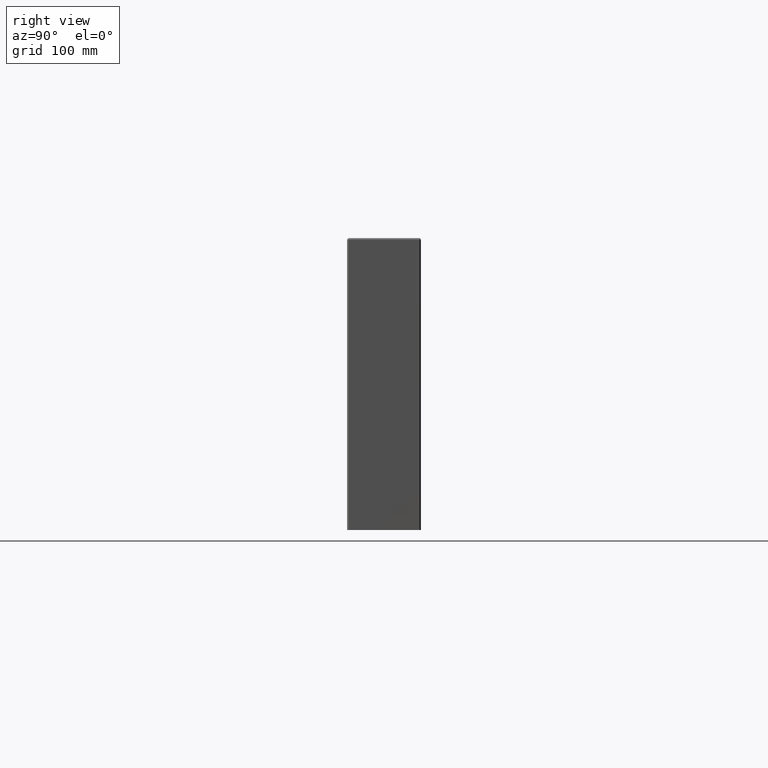
[diagram: clean part render]
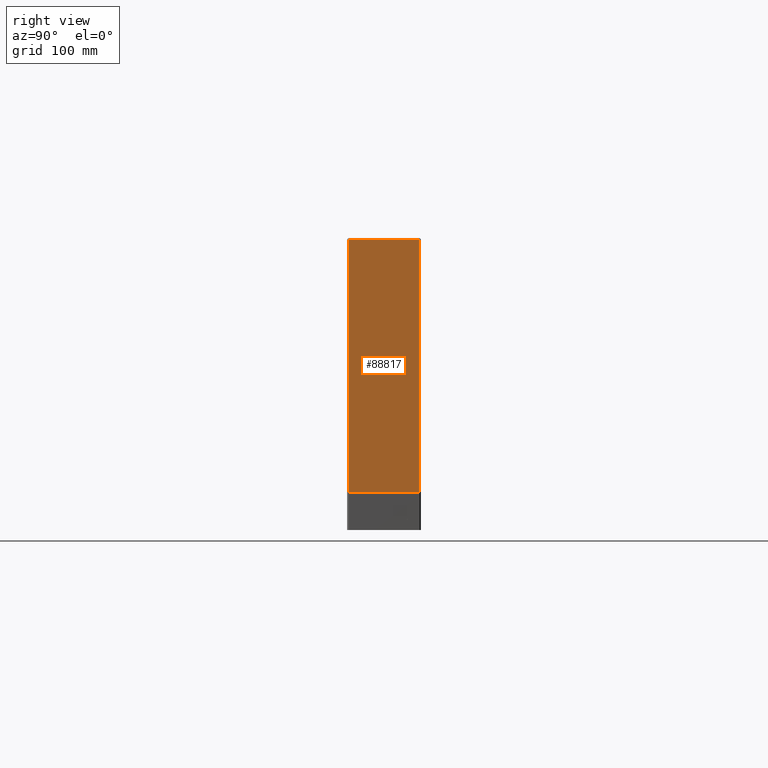
[diagram: same view with one face highlighted and labeled with its STEP entity id]
A machine part, right view. The second image highlights one B-rep face of the part: STEP entity #88817.
In plain terms, the highlighted face is a freeform B-spline surface patch.
Its self-contained STEP definition (entity closure, byte-faithful):
#264 = CARTESIAN_POINT ( 'NONE',  ( 1125.000000000000000, 113.0000000000000300, 457.0000000000001700 ) ) ;
#2889 = EDGE_CURVE ( 'NONE', #36608, #49176, #19912, .T. ) ;
#3319 = CARTESIAN_POINT ( 'NONE',  ( 1125.000000000000000, 0.0000000000000000000, 60.00000000000000000 ) ) ;
#8280 = CARTESIAN_POINT ( 'NONE',  ( 1125.000000000000000, 113.0000000000000100, 59.99999979560251300 ) ) ;
#8388 = B_SPLINE_CURVE_WITH_KNOTS ( 'NONE', 1,
 ( #94767, #83410 ),
 .UNSPECIFIED., .F., .F.,
 ( 2, 2 ),
 ( -113.0000000000001000, -3.000000000000000000 ),
 .UNSPECIFIED. ) ;
#9006 = CARTESIAN_POINT ( 'NONE',  ( 1125.000000000000000, 2.999999999999998700, 192.3333333333324900 ) ) ;
#10046 = DIRECTION ( 'NONE',  ( -0.0000000000000000000, 1.000000000000000000, -0.0000000000000000000 ) ) ;
#10322 = EDGE_LOOP ( 'NONE', ( #38259, #66109, #75312, #93848 ) ) ;
#10847 = CARTESIAN_POINT ( 'NONE',  ( 1174.999999999999800, 0.0000000000000000000, 10.00000000000000900 ) ) ;
#12071 = B_SPLINE_CURVE_WITH_KNOTS ( 'NONE', 3,
 ( #264, #67178, #74549, #30114 ),
 .UNSPECIFIED., .F., .F.,
 ( 4, 4 ),
 ( 0.0000000000000000000, 1.000000000000000000 ),
 .UNSPECIFIED. ) ;
#18299 = CARTESIAN_POINT ( 'NONE',  ( 1199.999999999999800, 0.0000000000000000000, 10.00000000000000900 ) ) ;
#19912 = B_SPLINE_CURVE_WITH_KNOTS ( 'NONE', 3,
 ( #75882, #9006, #30957, #31918 ),
 .UNSPECIFIED., .F., .F.,
 ( 4, 4 ),
 ( 0.0000000000000000000, 1.000000000000000000 ),
 .UNSPECIFIED. ) ;
#25390 = CARTESIAN_POINT ( 'NONE',  ( 1125.000000000000000, 116.0000000000000000, 60.00000000000000000 ) ) ;
#30114 = CARTESIAN_POINT ( 'NONE',  ( 1125.000000000000000, 113.0000000000000100, 59.99999979560251300 ) ) ;
#30957 = CARTESIAN_POINT ( 'NONE',  ( 1125.000000000000000, 3.000000000000000000, 324.6666666666732800 ) ) ;
#31918 = CARTESIAN_POINT ( 'NONE',  ( 1125.000000000000000, 2.999999999999986200, 456.9999999999998300 ) ) ;
#32854 = CARTESIAN_POINT ( 'NONE',  ( 1174.999999999999800, 116.0000000000000000, 10.00000000000000900 ) ) ;
#35441 = EDGE_CURVE ( 'NONE', #36608, #49211, #45864, .T. ) ;
#36608 = VERTEX_POINT ( 'NONE', #83155 ) ;
#38259 = ORIENTED_EDGE ( 'NONE', *, *, #35441, .T. ) ;
#40327 = CARTESIAN_POINT ( 'NONE',  ( 1199.999999999999800, 116.0000000000000000, 10.00000000000000900 ) ) ;
#43443 = FACE_OUTER_BOUND ( 'NONE', #10322, .T. ) ;
#43499 = VECTOR ( 'NONE', #10046, 1000.000000000000000 ) ;
#45864 = LINE ( 'NONE', #69116, #43499 ) ;
#47864 = CARTESIAN_POINT ( 'NONE',  ( 1125.000000000000000, 0.0000000000000000000, 305.0000000000000000 ) ) ;
#49176 = VERTEX_POINT ( 'NONE', #59044 ) ;
#49211 = VERTEX_POINT ( 'NONE', #8280 ) ;
#55069 = CARTESIAN_POINT ( 'NONE',  ( 1125.000000000000000, 116.0000000000000000, 305.0000000000000000 ) ) ;
#55392 = CARTESIAN_POINT ( 'NONE',  ( 1125.000000000000000, 2.040034807748724700E-015, 9.999999999999966200 ) ) ;
#59044 = CARTESIAN_POINT ( 'NONE',  ( 1125.000000000000000, 2.999999999999986200, 456.9999999999998300 ) ) ;
#62841 = CARTESIAN_POINT ( 'NONE',  ( 1187.500000000000000, 0.0000000000000000000, 10.00000000000000900 ) ) ;
#65677 = CARTESIAN_POINT ( 'NONE',  ( 1125.000000000000000, 113.0000000000000300, 457.0000000000001700 ) ) ;
#66109 = ORIENTED_EDGE ( 'NONE', *, *, #80037, .F. ) ;
#67178 = CARTESIAN_POINT ( 'NONE',  ( 1125.000000000000000, 113.0000000000000000, 324.6666666666736800 ) ) ;
#69116 = CARTESIAN_POINT ( 'NONE',  ( 1125.000000000000000, 57.99999999999998600, 59.99999979560251300 ) ) ;
#69877 = CARTESIAN_POINT ( 'NONE',  ( 1125.000000000000000, 116.0000000000000000, 490.0000000000000000 ) ) ;
#73349 =( BOUNDED_SURFACE ( )  B_SPLINE_SURFACE ( 1, 2, ( 
 ( #69877, #55069, #25390, #77260, #32854, #84680, #40327 ),
 ( #92094, #47864, #3319, #55392, #10847, #62841, #18299 ) ),
 .UNSPECIFIED., .F., .F., .F. ) 
 B_SPLINE_SURFACE_WITH_KNOTS ( ( 2, 2 ),
 ( 3, 2, 2, 3 ),
 ( 0.0000000000000000000, 116.0000000000000000 ),
 ( 1098.539816339744900, 1468.539816339744900, 1547.079632679489800, 1572.079632679489800 ),
 .UNSPECIFIED. ) 
 GEOMETRIC_REPRESENTATION_ITEM ( )  RATIONAL_B_SPLINE_SURFACE ( (
 ( 1.000000000000000000, 1.000000000000000000, 1.000000000000000000, 0.7071067811865474600, 1.000000000000000000, 1.000000000000000000, 1.000000000000000000),
 ( 1.000000000000000000, 1.000000000000000000, 1.000000000000000000, 0.7071067811865474600, 1.000000000000000000, 1.000000000000000000, 1.000000000000000000) ) ) 
 REPRESENTATION_ITEM ( '' )  SURFACE ( )  );
#74549 = CARTESIAN_POINT ( 'NONE',  ( 1125.000000000000000, 113.0000000000001000, 192.3333333333324000 ) ) ;
#75312 = ORIENTED_EDGE ( 'NONE', *, *, #88473, .T. ) ;
#75882 = CARTESIAN_POINT ( 'NONE',  ( 1125.000000000000000, 2.999999999999999600, 60.00000000000000000 ) ) ;
#77260 = CARTESIAN_POINT ( 'NONE',  ( 1125.000000000000000, 116.0000000000000000, 9.999999999999966200 ) ) ;
#80037 = EDGE_CURVE ( 'NONE', #89684, #49211, #12071, .T. ) ;
#83155 = CARTESIAN_POINT ( 'NONE',  ( 1125.000000000000000, 2.999999999999999600, 60.00000000000000000 ) ) ;
#83410 = CARTESIAN_POINT ( 'NONE',  ( 1125.000000000000000, 2.999999999999986200, 456.9999999999998300 ) ) ;
#84680 = CARTESIAN_POINT ( 'NONE',  ( 1187.500000000000000, 116.0000000000000000, 10.00000000000000900 ) ) ;
#88473 = EDGE_CURVE ( 'NONE', #89684, #49176, #8388, .T. ) ;
#88817 = ADVANCED_FACE ( 'NONE', ( #43443 ), #73349, .T. ) ;
#89684 = VERTEX_POINT ( 'NONE', #65677 ) ;
#92094 = CARTESIAN_POINT ( 'NONE',  ( 1125.000000000000000, 0.0000000000000000000, 490.0000000000000000 ) ) ;
#93848 = ORIENTED_EDGE ( 'NONE', *, *, #2889, .F. ) ;
#94767 = CARTESIAN_POINT ( 'NONE',  ( 1125.000000000000000, 113.0000000000000300, 457.0000000000001700 ) ) ;